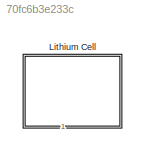
MODEL slx_70fc6b3e233c
KIND library
CONFIG AbsTol = auto
CONFIG FixedStep = auto
CONFIG MaxStep = auto
CONFIG MinStep = auto
CONFIG RelTol = 1e-3
CONFIG SampleTimeConstraint = Unconstrained
CONFIG Solver = ode45
CONFIG SolverMode = Auto
CONFIG SolverName = ode45
CONFIG StartTime = 0.0
CONFIG StopTime = 10.0
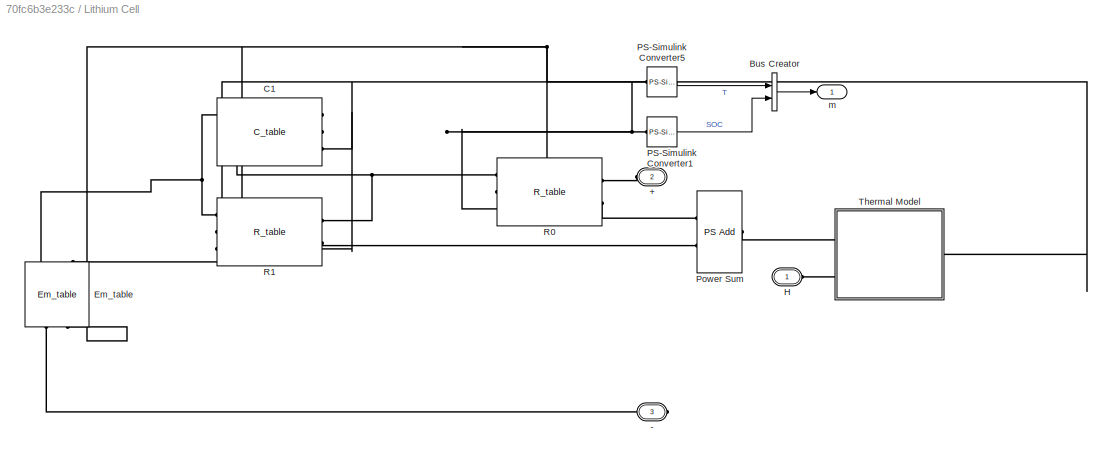
BLOCK [SubSystem] Lithium Cell
  AttributesFormatString = %<Battery>
  Ports = [0, 1, 0, 0, 0, 2, 1]
  RequestExecContextInheritance = off
  Variant = off
BLOCK [PMIOPort] Lithium Cell/+
  Port = 2
  Side = Left
  Tag = PMCPort
BLOCK [PMIOPort] Lithium Cell/-
  Port = 3
  Side = Right
  Tag = PMCPort
BLOCK [BusCreator] Lithium Cell/Bus Creator
  DisplayOption = bar
  InheritFromInputs = on
  Inputs = 2
  Ports = [2, 1]
BLOCK [Reference] Lithium Cell/C1  REF=LiBatteryElements_lib/C_table
  Ports = [0, 0, 0, 0, 0, 3, 1]
  SourceBlock = LiBatteryElements_lib/C_table
  SourceType = C_table
BLOCK [Reference] Lithium Cell/Em_table  REF=LiBatteryElements_lib/Em_table
  Ports = [0, 0, 0, 0, 0, 3, 2]
  SourceBlock = LiBatteryElements_lib/Em_table
  SourceType = Em_table
BLOCK [PMIOPort] Lithium Cell/H
  Port = 1
  Side = Left
  Tag = PMCPort
BLOCK [Reference] Lithium Cell/PS-Simulink Converter1  REF=nesl_utility/PS-Simulink
Converter
  Ports = [0, 1, 0, 0, 0, 1]
  SourceBlock = nesl_utility/PS-Simulink\nConverter
  SourceType = PS-Simulink\nConverter
BLOCK [Reference] Lithium Cell/PS-Simulink Converter5  REF=nesl_utility/PS-Simulink
Converter
  Ports = [0, 1, 0, 0, 0, 1]
  SourceBlock = nesl_utility/PS-Simulink\nConverter
  SourceType = PS-Simulink\nConverter
BLOCK [Reference] Lithium Cell/Power Sum  REF=fl_lib/Physical Signals/Functions/PS Add
  Ports = [0, 0, 0, 0, 0, 2, 1]
  SourceBlock = fl_lib/Physical Signals/Functions/PS Add
  SourceType = PS Add
BLOCK [Reference] Lithium Cell/R0  REF=LiBatteryElements_lib/R_table
  Ports = [0, 0, 0, 0, 0, 3, 2]
  SourceBlock = LiBatteryElements_lib/R_table
  SourceType = R_table
BLOCK [Reference] Lithium Cell/R1  REF=LiBatteryElements_lib/R_table
  Ports = [0, 0, 0, 0, 0, 3, 2]
  SourceBlock = LiBatteryElements_lib/R_table
  SourceType = R_table
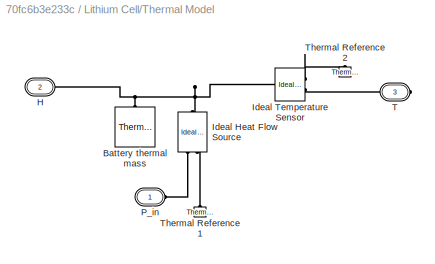
BLOCK [SubSystem] Lithium Cell/Thermal Model
  Ports = [0, 0, 0, 0, 0, 2, 1]
  RequestExecContextInheritance = off
  Variant = off
BLOCK [Reference] Lithium Cell/Thermal Model/Battery thermal mass  REF=fl_lib/Thermal/Thermal Elements/Thermal Mass
  Ports = [0, 0, 0, 0, 0, 1]
  SourceBlock = fl_lib/Thermal/Thermal Elements/Thermal Mass
  SourceType = Thermal Mass
BLOCK [PMIOPort] Lithium Cell/Thermal Model/H
  Port = 2
  Side = Left
  Tag = PMCPort
BLOCK [Reference] Lithium Cell/Thermal Model/Ideal Heat Flow Source  REF=fl_lib/Thermal/Thermal Sources/Ideal Heat Flow
Source
  Ports = [0, 0, 0, 0, 0, 1, 2]
  SourceBlock = fl_lib/Thermal/Thermal Sources/Ideal Heat Flow\nSource
  SourceType = Ideal Heat Flow\nSource
BLOCK [Reference] Lithium Cell/Thermal Model/Ideal Temperature Sensor  REF=fl_lib/Thermal/Thermal Sensors/Ideal Temperature
Sensor
  Ports = [0, 0, 0, 0, 0, 1, 2]
  SourceBlock = fl_lib/Thermal/Thermal Sensors/Ideal Temperature\nSensor
  SourceType = Ideal Temperature\nSensor
BLOCK [PMIOPort] Lithium Cell/Thermal Model/P_in
  Port = 1
  Side = Left
  Tag = PMCPort
BLOCK [PMIOPort] Lithium Cell/Thermal Model/T
  Port = 3
  Side = Right
  Tag = PMCPort
BLOCK [Reference] Lithium Cell/Thermal Model/Thermal Reference1  REF=fl_lib/Thermal/Thermal Elements/Thermal Reference
  Ports = [0, 0, 0, 0, 0, 1]
  SourceBlock = fl_lib/Thermal/Thermal Elements/Thermal Reference
  SourceType = Thermal Reference
BLOCK [Reference] Lithium Cell/Thermal Model/Thermal Reference2  REF=fl_lib/Thermal/Thermal Elements/Thermal Reference
  Ports = [0, 0, 0, 0, 0, 1]
  SourceBlock = fl_lib/Thermal/Thermal Elements/Thermal Reference
  SourceType = Thermal Reference
BLOCK [Outport] Lithium Cell/m
  IconDisplay = Port number
LINE Lithium Cell/Bus Creator:1 -> Lithium Cell/m:1
LINE Lithium Cell/PS-Simulink Converter1:1 -> Lithium Cell/Bus Creator:2
LINE Lithium Cell/PS-Simulink Converter5:1 -> Lithium Cell/Bus Creator:1
PLINE Lithium Cell/+:RConn1 -- Lithium Cell/R0:RConn1
PLINE Lithium Cell/-:RConn1 -- Lithium Cell/Em_table:RConn1
PNET net1: Lithium Cell/C1:LConn1 -- Lithium Cell/Em_table:LConn1 -- Lithium Cell/R1:LConn1
PNET net2: Lithium Cell/C1:LConn2 -- Lithium Cell/Em_table:RConn2 -- Lithium Cell/PS-Simulink Converter5:LConn1 -- Lithium Cell/R0:LConn2 -- Lithium Cell/R1:LConn2 -- Lithium Cell/Thermal Model:RConn1
PNET net3: Lithium Cell/C1:LConn3 -- Lithium Cell/Em_table:LConn3 -- Lithium Cell/PS-Simulink Converter1:LConn1 -- Lithium Cell/R0:LConn3 -- Lithium Cell/R1:LConn3
PNET net4: Lithium Cell/C1:RConn1 -- Lithium Cell/R0:LConn1 -- Lithium Cell/R1:RConn1
PLINE Lithium Cell/H:RConn1 -- Lithium Cell/Thermal Model:LConn2
PLINE Lithium Cell/Power Sum:LConn1 -- Lithium Cell/R0:RConn2
PLINE Lithium Cell/Power Sum:LConn2 -- Lithium Cell/R1:RConn2
PLINE Lithium Cell/Power Sum:RConn1 -- Lithium Cell/Thermal Model:LConn1
PNET net5: Lithium Cell/Thermal Model/Battery thermal mass:LConn1 -- Lithium Cell/Thermal Model/H:RConn1 -- Lithium Cell/Thermal Model/Ideal Heat Flow Source:LConn1 -- Lithium Cell/Thermal Model/Ideal Temperature Sensor:LConn1
PLINE Lithium Cell/Thermal Model/Ideal Heat Flow Source:RConn1 -- Lithium Cell/Thermal Model/P_in:RConn1
PLINE Lithium Cell/Thermal Model/Ideal Heat Flow Source:RConn2 -- Lithium Cell/Thermal Model/Thermal Reference1:LConn1
PLINE Lithium Cell/Thermal Model/Ideal Temperature Sensor:RConn1 -- Lithium Cell/Thermal Model/Thermal Reference2:LConn1
PLINE Lithium Cell/Thermal Model/Ideal Temperature Sensor:RConn2 -- Lithium Cell/Thermal Model/T:RConn1
note: PNET lines group multi-terminal physical nets as a canonical sorted terminal list (undirected conserving connections); 2-terminal nets keep the pairwise PLINE form
